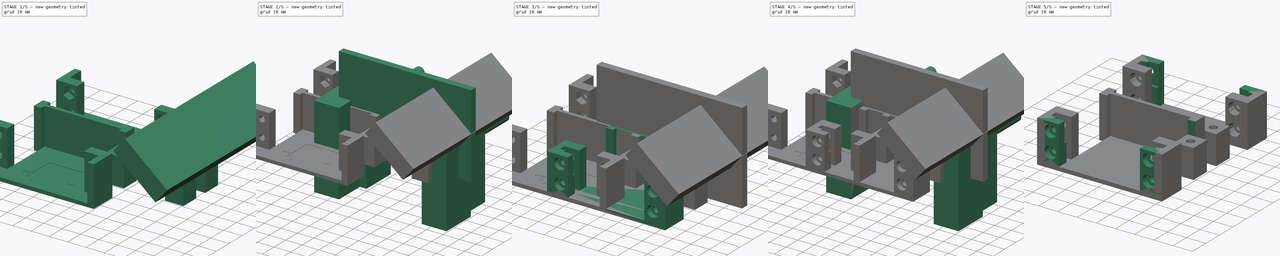
[diagram: build sequence overview — one tinted view per stage of 5, left to right]
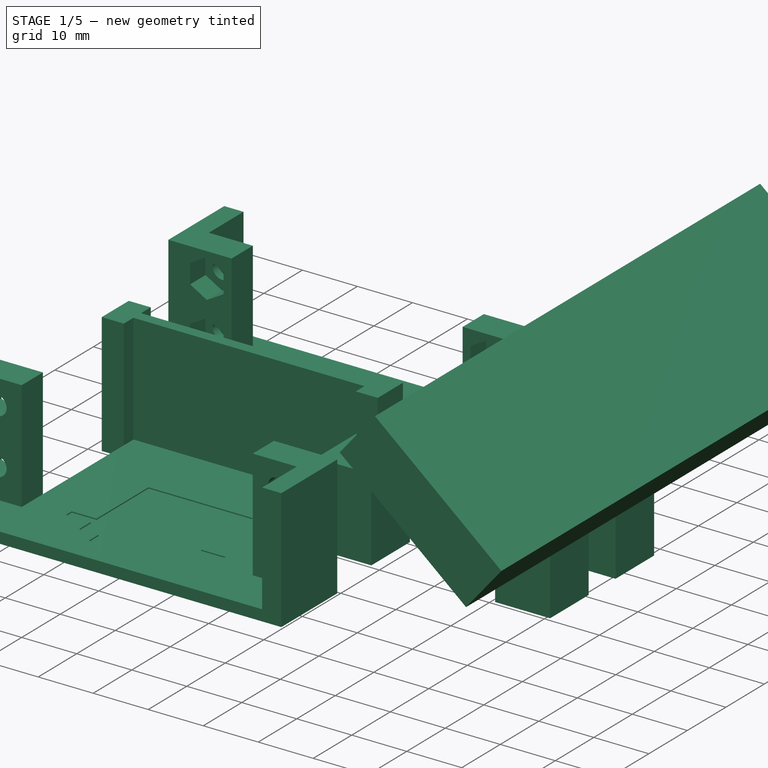
[diagram: stage 1 of 5 — iso view after this stage's code; geometry added in this stage tinted green]
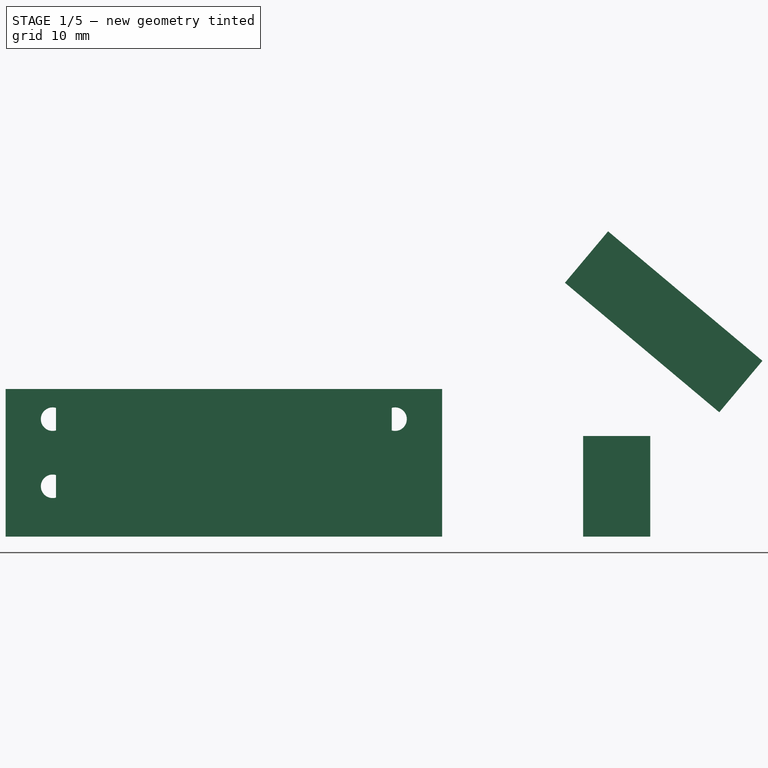
[diagram: stage 1 of 5 — front view after this stage's code; geometry added in this stage tinted green]
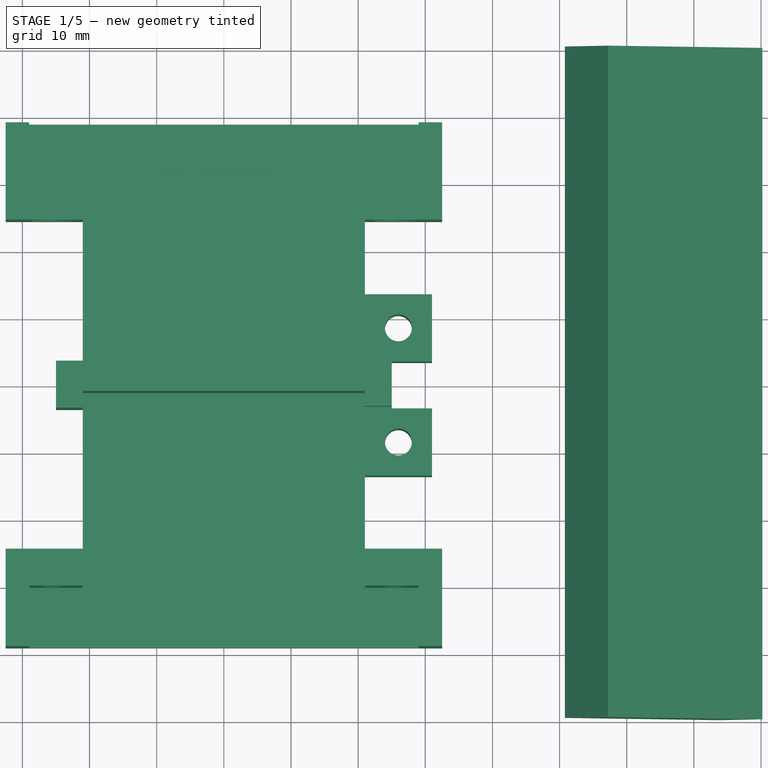
[diagram: stage 1 of 5 — top view after this stage's code; geometry added in this stage tinted green]
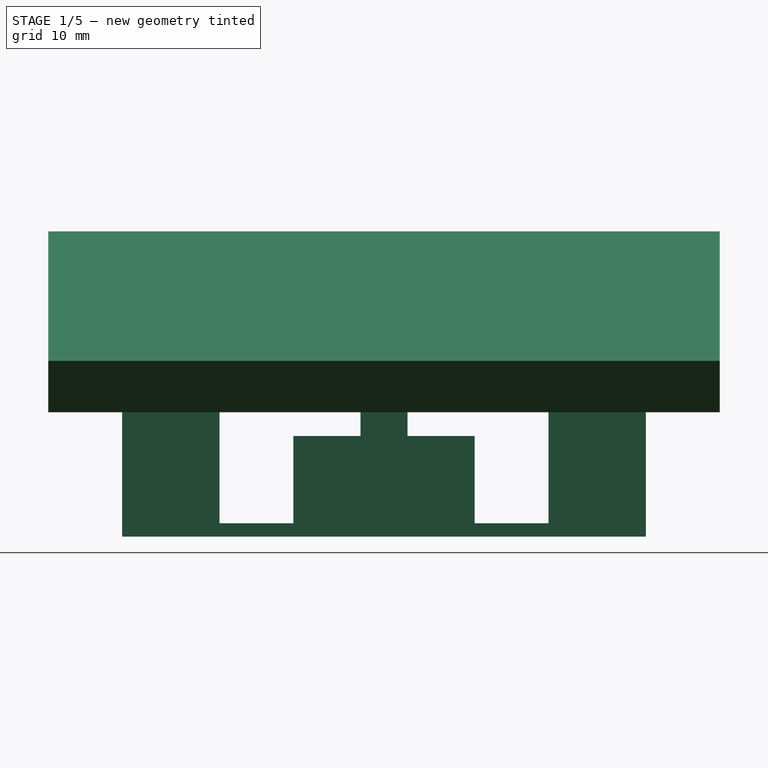
[diagram: stage 1 of 5 — right view after this stage's code; geometry added in this stage tinted green]
FCSTD DOCUMENT  (FreeCAD 0.14R3702 (Git))
Label: frame-rear-servos
License: CC-BY 3.0
LicenseURL: http://creativecommons.org/licenses/by/3.0/
objects: Part::Prism×28, Part::Box×27, Part::MultiFuse×15, Sketcher::SketchObject×9, PartDesign::Pocket×8, Part::Cut×7, PartDesign::Mirrored×3, Part::FeaturePython×2, Part::Mirroring×1, Part::Fuse×1, PartDesign::Pad×1
note: 111 computed .brp shape members not serialized (recipe doc carries the construction recipe); baked Part::Feature solids carry a one-line shape summary decoded from their .brp

FEATURE [Part::Box] cube024
  Height = 10
  Length = 30
  Placement = pos=(50.7954,-50,37.8116) rot=(0,1,0;0.698132rad)
  Width = 100
FEATURE [Part::Box] cube025
  Height = 15
  Length = 10
  Placement = pos=(53.5,3.5,0) rot=(0,0,1;0rad)
  Width = 10
FEATURE [Part::Prism] prism026
  Circumradius = 2
  Height = 30
  Placement = pos=(58.5,8.5,-5) rot=(0,0,1;0rad)
  Polygon = 25
FEATURE [Part::Cut] difference005
  Base = -> cube025
  Tool = -> prism026
FEATURE [Part::Box] cube026
  Height = 15
  Length = 10
  Placement = pos=(53.5,-13.5,0) rot=(0,0,1;0rad)
  Width = 10
FEATURE [Part::Prism] prism027
  Circumradius = 2
  Height = 30
  Placement = pos=(58.5,-8.5,-5) rot=(0,0,1;0rad)
  Polygon = 25
FEATURE [Part::Cut] difference006
  Base = -> cube026
  Tool = -> prism027
FEATURE [Sketcher::SketchObject] Sketch  label="main-body-sketch"
  sketch-geometry (24):
    g0: LineSegment StartX=-32.5 StartY=-39 StartZ=0 EndX=-32.5 EndY=-24.5 EndZ=0
    g1: LineSegment StartX=-32.5 StartY=-24.5 StartZ=0 EndX=-21 EndY=-24.5 EndZ=0
    g2: LineSegment StartX=-21 StartY=-24.5 StartZ=0 EndX=-21 EndY=-3.5 EndZ=0
    g3: LineSegment StartX=-21 StartY=-3.5 StartZ=0 EndX=-25 EndY=-3.5 EndZ=0
    g4: LineSegment StartX=-25 StartY=-3.5 StartZ=0 EndX=-25 EndY=3.5 EndZ=0
    g5: LineSegment StartX=-25 StartY=3.5 StartZ=0 EndX=-21 EndY=3.5 EndZ=0
    g6: LineSegment StartX=-21 StartY=3.5 StartZ=0 EndX=-21 EndY=24.5 EndZ=0
    g7: LineSegment StartX=-21 StartY=24.5 StartZ=0 EndX=-32.5 EndY=24.5 EndZ=0
    g8: LineSegment StartX=-32.5 StartY=24.5 StartZ=0 EndX=-32.5 EndY=39 EndZ=0
    g9: LineSegment StartX=-32.5 StartY=39 StartZ=0 EndX=32.5 EndY=39 EndZ=0
    g10: LineSegment StartX=32.5 StartY=39 StartZ=0 EndX=32.5 EndY=24.5 EndZ=0
    g11: LineSegment StartX=32.5 StartY=24.5 StartZ=0 EndX=21 EndY=24.5 EndZ=0
    g12: LineSegment StartX=21 StartY=24.5 StartZ=0 EndX=21 EndY=13.5 EndZ=0
    g13: LineSegment StartX=21 StartY=13.5 StartZ=0 EndX=31 EndY=13.5 EndZ=0
    g14: LineSegment StartX=31 StartY=13.5 StartZ=0 EndX=31 EndY=3.5 EndZ=0
    g15: LineSegment StartX=31 StartY=3.5 StartZ=0 EndX=25 EndY=3.5 EndZ=0
    g16: LineSegment StartX=25 StartY=3.5 StartZ=0 EndX=25 EndY=-3.5 EndZ=0
    g17: LineSegment StartX=25 StartY=-3.5 StartZ=0 EndX=31 EndY=-3.5 EndZ=0
    g18: LineSegment StartX=31 StartY=-3.5 StartZ=0 EndX=31 EndY=-13.5 EndZ=0
    g19: LineSegment StartX=31 StartY=-13.5 StartZ=0 EndX=21 EndY=-13.5 EndZ=0
    g20: LineSegment StartX=21 StartY=-13.5 StartZ=0 EndX=21 EndY=-24.5 EndZ=0
    g21: LineSegment StartX=21 StartY=-24.5 StartZ=0 EndX=32.5 EndY=-24.5 EndZ=0
    g22: LineSegment StartX=32.5 StartY=-24.5 StartZ=0 EndX=32.5 EndY=-39 EndZ=0
    g23: LineSegment StartX=32.5 StartY=-39 StartZ=0 EndX=-32.5 EndY=-39 EndZ=0
  constraints (66):
    c: Coincident(g0,g1)
    c: Coincident(g1,g2)
    c: Coincident(g2,g3)
    c: Coincident(g3,g4)
    c: Coincident(g4,g5)
    c: Coincident(g5,g6)
    c: Coincident(g6,g7)
    c: Coincident(g7,g8)
    c: Coincident(g8,g9)
    c: Coincident(g9,g10)
    c: Coincident(g10,g11)
    c: Coincident(g11,g12)
    c: Coincident(g12,g13)
    c: Coincident(g13,g14)
    c: Coincident(g14,g15)
    c: Coincident(g15,g16)
    c: Coincident(g16,g17)
    c: Coincident(g17,g18)
    c: Coincident(g18,g19)
    c: Coincident(g19,g20)
    c: Coincident(g20,g21)
    c: Coincident(g21,g22)
    c: Coincident(g22,g23)
    c: Coincident(g23,g0)
    c: Vertical(g0)
    c: Vertical(g22)
    c: Vertical(g20)
    c: Vertical(g18)
    c: Vertical(g16)
    c: Vertical(g14)
    c: Vertical(g12)
    c: Vertical(g10)
    c: Vertical(g8)
    c: Vertical(g6)
    c: Vertical(g4)
    c: Vertical(g2)
    c: Horizontal(g9)
    c: Horizontal(g7)
    c: Horizontal(g5)
    c: Horizontal(g3)
    c: Horizontal(g21)
    c: Horizontal(g19)
    c: Horizontal(g17)
    c: Horizontal(g13)
    c: Horizontal(g11)
    c: Symmetric(g8,g9,g-2)
    c: DistanceX(g9) = 65
    c: DistanceY(g10) = -14.5
    c: DistanceY(g6) = 21
    c: Symmetric(g6,g11,g-2)
    c: DistanceX(g7) = -11.5
    c: DistanceX(g5) = 4
    c: DistanceY(g4) = 7
    c: Symmetric(g2,g5,g-1)
    c: Symmetric(g1,g6,g-1)
    c: Symmetric(g0,g7,g-1)
    c: Symmetric(g0,g8,g-1)
    c: Horizontal(g23)
    c: Symmetric(g1,g20,g-2)
    c: Symmetric(g0,g21,g-2)
    c: Symmetric(g16,g15,g-1)
    c: Symmetric(g14,g17,g-1)
    c: DistanceY(g14) = -10
    c: DistanceX(g13) = 10
    c: Symmetric(g15,g4,g-2)
    c: DistanceY(g20) = -11
FEATURE [PartDesign::Pad] Pad  label="main-body"
  Length = 22
  Length2 = 100
  Sketch = -> Sketch
  Type = 0
FEATURE [Sketcher::SketchObject] Sketch001  label="top-cutout-1-sketch"
  ExternalGeometry = -> [Pad]
  Placement = pos=(0,0,22) rot=(0,0,1;0rad)
  Support = -> Pad [Face26]
  sketch-geometry (16):
    g0: LineSegment StartX=-29 StartY=39 StartZ=0 EndX=-29 EndY=30 EndZ=0
    g1: LineSegment StartX=-29 StartY=30 StartZ=0 EndX=-21 EndY=30 EndZ=0
    g2: LineSegment StartX=-21 StartY=30 StartZ=0 EndX=-21 EndY=1 EndZ=0
    g3: LineSegment StartX=-21 StartY=1 StartZ=0 EndX=21 EndY=1 EndZ=0
    g4: LineSegment StartX=21 StartY=1 StartZ=0 EndX=21 EndY=30 EndZ=0
    g5: LineSegment StartX=21 StartY=30 StartZ=0 EndX=29 EndY=30 EndZ=0
    g6: LineSegment StartX=29 StartY=30 StartZ=0 EndX=29 EndY=39 EndZ=0
    g7: LineSegment StartX=29 StartY=39 StartZ=0 EndX=-29 EndY=39 EndZ=0
    g8: LineSegment StartX=21 StartY=-1 StartZ=0 EndX=-21 EndY=-1 EndZ=0
    g9: LineSegment StartX=-21 StartY=-1 StartZ=0 EndX=-21 EndY=-30 EndZ=0
    g10: LineSegment StartX=-21 StartY=-30 StartZ=0 EndX=-29 EndY=-30 EndZ=0
    g11: LineSegment StartX=-29 StartY=-30 StartZ=0 EndX=-29 EndY=-39 EndZ=0
    g12: LineSegment StartX=-29 StartY=-39 StartZ=0 EndX=29 EndY=-39 EndZ=0
    g13: LineSegment StartX=29 StartY=-39 StartZ=0 EndX=29 EndY=-30 EndZ=0
    g14: LineSegment StartX=29 StartY=-30 StartZ=0 EndX=21 EndY=-30 EndZ=0
    g15: LineSegment StartX=21 StartY=-30 StartZ=0 EndX=21 EndY=-1 EndZ=0
  constraints (44):
    c: Coincident(g0,g1)
    c: Coincident(g1,g2)
    c: Coincident(g2,g3)
    c: Coincident(g3,g4)
    c: Coincident(g4,g5)
    c: Coincident(g5,g6)
    c: Coincident(g6,g7)
    c: Coincident(g7,g0)
    c: Vertical(g0)
    c: Vertical(g6)
    c: Vertical(g4)
    c: Vertical(g2)
    c: Horizontal(g7)
    c: Horizontal(g1)
    c: Horizontal(g5)
    c: Horizontal(g3)
    c: Symmetric(g0,g6,g-2)
    c: Symmetric(g1,g4,g-2)
    c: DistanceX(g7) = -58
    c: PointOnObject(g0,g-3)
    c: DistanceY(g0) = -9
    c: DistanceX(g1,g4) = 42
    c: DistanceY(g2) = -29
    c: Horizontal(g8)
    c: Coincident(g8,g9)
    c: Coincident(g9,g10)
    c: Coincident(g10,g11)
    c: Vertical(g11)
    c: Coincident(g11,g12)
    c: Horizontal(g12)
    c: Coincident(g12,g13)
    c: Vertical(g13)
    c: Coincident(g13,g14)
    c: Horizontal(g14)
    c: Coincident(g14,g15)
    c: Coincident(g15,g8)
    c: Vertical(g15)
    c: Symmetric(g2,g8,g-1)
    c: Symmetric(g8,g8,g-2)
    c: Symmetric(g9,g14,g-2)
    c: Symmetric(g10,g13,g-2)
    c: Symmetric(g9,g1,g-1)
    c: Symmetric(g10,g0,g-1)
    c: Symmetric(g11,g0,g-1)
FEATURE [PartDesign::Pocket] Pocket  label="top-cutout-1"
  Length = 20
  Sketch = -> Sketch001
  Type = 0
FEATURE [Sketcher::SketchObject] Sketch002  label="top-cutout-2-sketch"
  Placement = pos=(0,0,22) rot=(0,0,1;0rad)
  Support = -> Pocket [Face38]
  sketch-geometry (8):
    g0: LineSegment StartX=33 StartY=15.25 StartZ=0 EndX=33 EndY=3.25 EndZ=0
    g1: LineSegment StartX=21 StartY=3.25 StartZ=0 EndX=21 EndY=15.25 EndZ=0
    g2: LineSegment StartX=21 StartY=-3.25 StartZ=0 EndX=33 EndY=-3.25 EndZ=0
    g3: LineSegment StartX=33 StartY=-3.25 StartZ=0 EndX=33 EndY=-15.25 EndZ=0
    g4: LineSegment StartX=33 StartY=-15.25 StartZ=0 EndX=21 EndY=-15.25 EndZ=0
    g5: LineSegment StartX=21 StartY=-15.25 StartZ=0 EndX=21 EndY=-3.25 EndZ=0
    g6: LineSegment StartX=21 StartY=3.25 StartZ=0 EndX=33 EndY=3.25 EndZ=0
    g7: LineSegment StartX=21 StartY=15.25 StartZ=0 EndX=33 EndY=15.25 EndZ=0
  constraints (23):
    c: Vertical(g0)
    c: Vertical(g1)
    c: Coincident(g2,g3)
    c: Coincident(g3,g4)
    c: Coincident(g4,g5)
    c: Coincident(g5,g2)
    c: Horizontal(g2)
    c: Horizontal(g4)
    c: Vertical(g3)
    c: Vertical(g5)
    c: Symmetric(g2,g1,g-1)
    c: Symmetric(g2,g0,g-1)
    c: Symmetric(g3,g0,g-1)
    c: DistanceX(g-1,g1) = 21
    c: DistanceY(g-1,g1) = 3.25
    c: Coincident(g6,g1)
    c: Horizontal(g6)
    c: Coincident(g6,g0)
    c: Coincident(g7,g1)
    c: Coincident(g7,g0)
    c: Horizontal(g7)
    c: DistanceY(g0) = -12
    c: DistanceX(g7) = 12
FEATURE [PartDesign::Pocket] Pocket001  label="top-cutout-2"
  Length = 7
  Sketch = -> Sketch002
  Type = 0
FEATURE [Sketcher::SketchObject] Sketch003  label="top-drills-sketch"
  Placement = pos=(0,0,15) rot=(0,0,1;0rad)
  Support = -> Pocket001 [Face47]
  sketch-geometry (2):
    g0: Circle CenterX=26 CenterY=8.5 CenterZ=0 NormalX=0 NormalY=0 NormalZ=1 Radius=2
    g1: Circle CenterX=26 CenterY=-8.5 CenterZ=0 NormalX=0 NormalY=0 NormalZ=1 Radius=2
  constraints (5):
    c: Radius(g0) = 2
    c: Equal(g1,g0)
    c: Symmetric(g0,g1,g-1)
    c: DistanceY(g-1,g0) = 8.5
    c: DistanceX(g-1,g0) = 26
FEATURE [PartDesign::Pocket] Pocket002  label="top-drills"
  Length = 5
  Sketch = -> Sketch003
  Type = 1
FEATURE [Sketcher::SketchObject] Sketch004  label="servo-1-drills-sketch"
  Placement = pos=(0,-30,0) rot=(1,0,0;1.5708rad)
  Support = -> Pocket002 [Face34]
  sketch-geometry (5):
    g0: Circle CenterX=-25.5 CenterY=17.5 CenterZ=0 NormalX=0 NormalY=0 NormalZ=1 Radius=1.75
    g1: LineSegment [constr] StartX=-25.5 StartY=17.5 StartZ=0 EndX=-25.5 EndY=7.5 EndZ=0
    g2: Circle CenterX=-25.5 CenterY=7.5 CenterZ=0 NormalX=0 NormalY=0 NormalZ=1 Radius=1.75
    g3: Circle CenterX=25.5 CenterY=17.5 CenterZ=0 NormalX=0 NormalY=0 NormalZ=1 Radius=1.75
    g4: Circle CenterX=25.5 CenterY=7.5 CenterZ=0 NormalX=0 NormalY=0 NormalZ=1 Radius=1.75
  constraints (12):
    c: Radius(g0) = 1.75
    c: DistanceY(g-1,g0) = 17.5
    c: DistanceX(g-1,g0) = -25.5
    c: Vertical(g1)
    c: Coincident(g1,g0)
    c: Equal(g2,g0)
    c: Coincident(g2,g1)
    c: DistanceY(g-1,g1) = 7.5
    c: Symmetric(g3,g0,g-2)
    c: Symmetric(g4,g1,g-2)
    c: Equal(g3,g4)
    c: Equal(g4,g0)
FEATURE [PartDesign::Pocket] Pocket003  label="servo-1-drills"
  Length = 6
  Sketch = -> Sketch004
  Type = 0
FEATURE [Sketcher::SketchObject] Sketch005  label="servo-2-drills-sketch"
  Placement = pos=(0,30,0) rot=(0,0.707107,0.707107;3.14159rad)
  Support = -> Pocket003 [Face59]
  sketch-geometry (5):
    g0: Circle CenterX=-25.5 CenterY=17.5 CenterZ=0 NormalX=0 NormalY=0 NormalZ=1 Radius=1.75
    g1: Circle CenterX=-25.5 CenterY=7.5 CenterZ=0 NormalX=0 NormalY=0 NormalZ=1 Radius=1.75
    g2: LineSegment [constr] StartX=-25.5 StartY=17.5 StartZ=0 EndX=-25.5 EndY=7.5 EndZ=0
    g3: Circle CenterX=25.5 CenterY=17.5 CenterZ=0 NormalX=0 NormalY=0 NormalZ=1 Radius=1.75
    g4: Circle CenterX=25.5 CenterY=7.5 CenterZ=0 NormalX=0 NormalY=0 NormalZ=1 Radius=1.75
  constraints (12):
    c: Equal(g1,g0)
    c: Radius(g0) = 1.75
    c: DistanceY(g-1,g0) = 17.5
    c: DistanceY(g-1,g1) = 7.5
    c: Vertical(g2)
    c: Coincident(g2,g0)
    c: Coincident(g2,g1)
    c: DistanceX(g-1,g1) = -25.5
    c: Equal(g3,g4)
    c: Equal(g4,g0)
    c: Symmetric(g3,g0,g-2)
    c: Symmetric(g4,g1,g-2)
FEATURE [PartDesign::Pocket] Pocket004  label="servo-2-drills"
  Length = 6
  Sketch = -> Sketch005
  Type = 0
FEATURE [Sketcher::SketchObject] Sketch007  label="servo-2-nut-holders-master-sketch"
  Placement = pos=(0,24.5,0) rot=(1,0,0;1.5708rad)
  Support = -> Pocket004 [Face24]
  sketch-geometry (17):
    g0: LineSegment [constr] StartX=-25.5 StartY=21.0218 StartZ=0 EndX=-25.5 EndY=17.5 EndZ=0
    g1: LineSegment [constr] StartX=-28.55 StartY=17.5 StartZ=0 EndX=-25.5 EndY=17.5 EndZ=0
    g2: LineSegment StartX=-25.5 StartY=21.0218 StartZ=0 EndX=-28.55 EndY=19.2609 EndZ=0
    g3: LineSegment StartX=-28.55 StartY=19.2609 StartZ=0 EndX=-28.55 EndY=15.7391 EndZ=0
    g4: LineSegment [constr] StartX=-28.55 StartY=19.2609 StartZ=0 EndX=-25.5 EndY=17.5 EndZ=0
    g5: LineSegment StartX=-28.55 StartY=15.7391 StartZ=0 EndX=-25.5 EndY=13.9782 EndZ=0
    g6: LineSegment StartX=-25.5 StartY=13.9782 StartZ=0 EndX=-22.45 EndY=15.7391 EndZ=0
    g7: LineSegment StartX=-22.45 StartY=15.7391 StartZ=0 EndX=-22.45 EndY=19.2609 EndZ=0
    g8: LineSegment StartX=-22.45 StartY=19.2609 StartZ=0 EndX=-25.5 EndY=21.0218 EndZ=0
    g9: LineSegment [constr] StartX=-25.5 StartY=7.5 StartZ=0 EndX=-25.5 EndY=17.5 EndZ=0
    g10: LineSegment StartX=-25.5 StartY=11.0218 StartZ=0 EndX=-28.55 EndY=9.26092 EndZ=0
    g11: LineSegment StartX=-28.55 StartY=9.26092 StartZ=0 EndX=-28.55 EndY=5.73908 EndZ=0
    g12: LineSegment StartX=-28.55 StartY=5.73908 StartZ=0 EndX=-25.5 EndY=3.97816 EndZ=0
    g13: LineSegment StartX=-25.5 StartY=3.97816 StartZ=0 EndX=-22.45 EndY=5.73908 EndZ=0
    g14: LineSegment StartX=-22.45 StartY=5.73908 StartZ=0 EndX=-22.45 EndY=9.26092 EndZ=0
    g15: LineSegment StartX=-22.45 StartY=9.26092 StartZ=0 EndX=-25.5 EndY=11.0218 EndZ=0
    g16: LineSegment [constr] StartX=-25.5 StartY=12.5 StartZ=0 EndX=0 EndY=12.5 EndZ=0
  constraints (44):
    c: Horizontal(g1)
    c: Coincident(g2,g3)
    c: PointOnObject(g1,g3)
    c: Coincident(g2,g0)
    c: Coincident(g2,g4)
    c: Symmetric(g3,g2,g1)
    c: Angle(g0,g4) = 1.0472
    c: Vertical(g0)
    c: Coincident(g0,g1)
    c: Coincident(g4,g0)
    c: Equal(g4,g0)
    c: Coincident(g3,g5)
    c: Coincident(g5,g6)
    c: Coincident(g6,g7)
    c: Vertical(g7)
    c: Coincident(g7,g8)
    c: Coincident(g8,g0)
    c: Symmetric(g3,g6,g0)
    c: Symmetric(g5,g0,g1)
    c: Symmetric(g7,g2,g0)
    c: DistanceX(g2,g7) = 6.1
    c: DistanceX(g-1,g0) = -25.5
    c: DistanceY(g-1,g0) = 17.5
    c: Vertical(g9)
    c: Coincident(g9,g0)
    c: DistanceY(g-1,g9) = 7.5
    c: Coincident(g10,g11)
    c: Vertical(g11)
    c: Coincident(g11,g12)
    c: Coincident(g12,g13)
    c: Coincident(g13,g14)
    c: Vertical(g14)
    c: Coincident(g14,g15)
    c: Coincident(g15,g10)
    c: Symmetric(g10,g14,g9)
    c: Parallel(g10,g2)
    c: Parallel(g13,g10)
    c: PointOnObject(g16,g9)
    c: PointOnObject(g16,g-2)
    c: Symmetric(g0,g9,g16)
    c: Symmetric(g10,g5,g16)
    c: Symmetric(g10,g3,g16)
    c: Symmetric(g12,g0,g16)
    c: Symmetric(g11,g2,g16)
FEATURE [PartDesign::Pocket] Pocket005  label="servo-2-nut-holders-master"
  Length = 4
  Sketch = -> Sketch007
  Type = 0
FEATURE [PartDesign::Mirrored] Mirrored  label="servo-2-nut-holders-mirror"
  MirrorPlane = -> Sketch007 [V_Axis]
  Originals = -> [Pocket005]
FEATURE [Sketcher::SketchObject] Sketch006  label="servo-1-nut-holders-master-sketch"
  Placement = pos=(0,-24.5,0) rot=(0,0.707107,0.707107;3.14159rad)
  Support = -> Mirrored [Face15]
  sketch-geometry (17):
    g0: LineSegment [constr] StartX=-25.5 StartY=21.0218 StartZ=0 EndX=-25.5 EndY=17.5 EndZ=0
    g1: LineSegment [constr] StartX=-28.55 StartY=17.5 StartZ=0 EndX=-25.5 EndY=17.5 EndZ=0
    g2: LineSegment StartX=-25.5 StartY=21.0218 StartZ=0 EndX=-28.55 EndY=19.2609 EndZ=0
    g3: LineSegment StartX=-28.55 StartY=19.2609 StartZ=0 EndX=-28.55 EndY=15.7391 EndZ=0
    g4: LineSegment [constr] StartX=-28.55 StartY=19.2609 StartZ=0 EndX=-25.5 EndY=17.5 EndZ=0
    g5: LineSegment StartX=-28.55 StartY=15.7391 StartZ=0 EndX=-25.5 EndY=13.9782 EndZ=0
    g6: LineSegment StartX=-25.5 StartY=13.9782 StartZ=0 EndX=-22.45 EndY=15.7391 EndZ=0
    g7: LineSegment StartX=-22.45 StartY=15.7391 StartZ=0 EndX=-22.45 EndY=19.2609 EndZ=0
    g8: LineSegment StartX=-22.45 StartY=19.2609 StartZ=0 EndX=-25.5 EndY=21.0218 EndZ=0
    g9: LineSegment [constr] StartX=-25.5 StartY=7.5 StartZ=0 EndX=-25.5 EndY=17.5 EndZ=0
    g10: LineSegment StartX=-25.5 StartY=11.0218 StartZ=0 EndX=-28.55 EndY=9.26092 EndZ=0
    g11: LineSegment StartX=-28.55 StartY=9.26092 StartZ=0 EndX=-28.55 EndY=5.73908 EndZ=0
    g12: LineSegment StartX=-28.55 StartY=5.73908 StartZ=0 EndX=-25.5 EndY=3.97816 EndZ=0
    g13: LineSegment StartX=-25.5 StartY=3.97816 StartZ=0 EndX=-22.45 EndY=5.73908 EndZ=0
    g14: LineSegment StartX=-22.45 StartY=5.73908 StartZ=0 EndX=-22.45 EndY=9.26092 EndZ=0
    g15: LineSegment StartX=-22.45 StartY=9.26092 StartZ=0 EndX=-25.5 EndY=11.0218 EndZ=0
    g16: LineSegment [constr] StartX=-25.5 StartY=12.5 StartZ=0 EndX=0 EndY=12.5 EndZ=0
  constraints (44):
    c: Horizontal(g1)
    c: Coincident(g2,g3)
    c: PointOnObject(g1,g3)
    c: Coincident(g2,g0)
    c: Coincident(g2,g4)
    c: Symmetric(g3,g2,g1)
    c: Angle(g0,g4) = 1.0472
    c: Vertical(g0)
    c: Coincident(g0,g1)
    c: Coincident(g4,g0)
    c: Equal(g4,g0)
    c: Coincident(g3,g5)
    c: Coincident(g5,g6)
    c: Coincident(g6,g7)
    c: Vertical(g7)
    c: Coincident(g7,g8)
    c: Coincident(g8,g0)
    c: Symmetric(g3,g6,g0)
    c: Symmetric(g5,g0,g1)
    c: Symmetric(g7,g2,g0)
    c: DistanceX(g2,g7) = 6.1
    c: DistanceX(g-1,g0) = -25.5
    c: DistanceY(g-1,g0) = 17.5
    c: Vertical(g9)
    c: Coincident(g9,g0)
    c: DistanceY(g-1,g9) = 7.5
    c: Coincident(g10,g11)
    c: Vertical(g11)
    c: Coincident(g11,g12)
    c: Coincident(g12,g13)
    c: Coincident(g13,g14)
    c: Vertical(g14)
    c: Coincident(g14,g15)
    c: Coincident(g15,g10)
    c: Symmetric(g10,g14,g9)
    c: Parallel(g10,g2)
    c: Parallel(g13,g10)
    c: PointOnObject(g16,g9)
    c: PointOnObject(g16,g-2)
    c: Symmetric(g0,g9,g16)
    c: Symmetric(g10,g5,g16)
    c: Symmetric(g10,g3,g16)
    c: Symmetric(g12,g0,g16)
    c: Symmetric(g11,g2,g16)
FEATURE [PartDesign::Pocket] Pocket006  label="servo-1-nut-holders-master"
  Length = 4
  Sketch = -> Sketch006
  Type = 0
FEATURE [PartDesign::Mirrored] Mirrored001  label="servo-1-nut-holders-mirror"
  MirrorPlane = -> Sketch006 [V_Axis]
  Originals = -> [Pocket006]
FEATURE [Sketcher::SketchObject] Sketch008  label="servo-doc-sketch"
  Placement = pos=(0,0,2) rot=(0,0,1;0rad)
  Support = -> Mirrored001 [Face69]
  sketch-geometry (16):
    g0: LineSegment StartX=9.5 StartY=13.5 StartZ=0 EndX=-9.5 EndY=13.5 EndZ=0
    g1: LineSegment StartX=-9.5 StartY=13.5 StartZ=0 EndX=-9.5 EndY=27 EndZ=0
    g2: LineSegment StartX=-9.5 StartY=27 StartZ=0 EndX=-14 EndY=27 EndZ=0
    g3: LineSegment StartX=-14 StartY=27 StartZ=0 EndX=-14 EndY=28.5 EndZ=0
    g4: LineSegment StartX=-6 StartY=31.5 StartZ=0 EndX=-6 EndY=34 EndZ=0
    g5: LineSegment StartX=-6 StartY=34 StartZ=0 EndX=-3.7 EndY=34 EndZ=0
    g6: LineSegment StartX=-3.7 StartY=34 StartZ=0 EndX=-3.7 EndY=31.5 EndZ=0
    g7: LineSegment StartX=-3.7 StartY=31.5 StartZ=0 EndX=6.5 EndY=31.5 EndZ=0
    g8: LineSegment StartX=6.5 StartY=31.5 StartZ=0 EndX=9.5 EndY=28.5 EndZ=0
    g9: LineSegment StartX=9.5 StartY=28.5 StartZ=0 EndX=14 EndY=28.5 EndZ=0
    g10: LineSegment StartX=14 StartY=28.5 StartZ=0 EndX=14 EndY=27 EndZ=0
    g11: LineSegment StartX=14 StartY=27 StartZ=0 EndX=9.5 EndY=27 EndZ=0
    g12: LineSegment StartX=9.5 StartY=27 StartZ=0 EndX=9.5 EndY=13.5 EndZ=0
    g13: LineSegment StartX=-14 StartY=28.5 StartZ=0 EndX=-9.5 EndY=28.5 EndZ=0
    g14: LineSegment StartX=-9.5 StartY=28.5 StartZ=0 EndX=-9.5 EndY=31.5 EndZ=0
    g15: LineSegment StartX=-9.5 StartY=31.5 StartZ=0 EndX=-6 EndY=31.5 EndZ=0
  constraints (47):
    c: Horizontal(g0)
    c: Coincident(g0,g1)
    c: Vertical(g1)
    c: Coincident(g1,g2)
    c: Horizontal(g2)
    c: Coincident(g2,g3)
    c: Coincident(g4,g5)
    c: Horizontal(g5)
    c: Coincident(g5,g6)
    c: Vertical(g6)
    c: Coincident(g6,g7)
    c: Horizontal(g7)
    c: Coincident(g7,g8)
    c: Coincident(g8,g9)
    c: Horizontal(g9)
    c: Coincident(g9,g10)
    c: Coincident(g10,g11)
    c: Horizontal(g11)
    c: Coincident(g11,g12)
    c: Coincident(g12,g0)
    c: Vertical(g12)
    c: Symmetric(g0,g0,g-2)
    c: Vertical(g3)
    c: Coincident(g3,g13)
    c: Horizontal(g13)
    c: Coincident(g13,g14)
    c: Coincident(g14,g15)
    c: Coincident(g15,g4)
    c: Horizontal(g15)
    c: Symmetric(g1,g11,g-2)
    c: Symmetric(g3,g9,g-2)
    c: PointOnObject(g4,g7)
    c: Vertical(g4)
    c: Vertical(g14)
    c: PointOnObject(g13,g1)
    c: PointOnObject(g8,g12)
    c: Vertical(g10)
    c: Angle(g8,g-1) = 0.785398
    c: DistanceX(g0) = -19
    c: DistanceY(g14,g0) = -18
    c: DistanceY(g14) = 3
    c: DistanceX(g2) = -4.5
    c: DistanceY(g3) = 1.5
    c: DistanceY(g6) = -2.5
    c: DistanceX(g5) = 2.3
    c: DistanceX(g15) = 3.5
    c: DistanceY(g-1,g0) = 13.5
FEATURE [PartDesign::Pocket] Pocket007  label="Servo-doc"
  Length = 0.2
  Sketch = -> Sketch008
  Type = 0
FEATURE [PartDesign::Mirrored] Mirrored002  label="servo-doc-mirror"
  MirrorPlane = -> Sketch008 [H_Axis]
  Originals = -> [Pocket007]
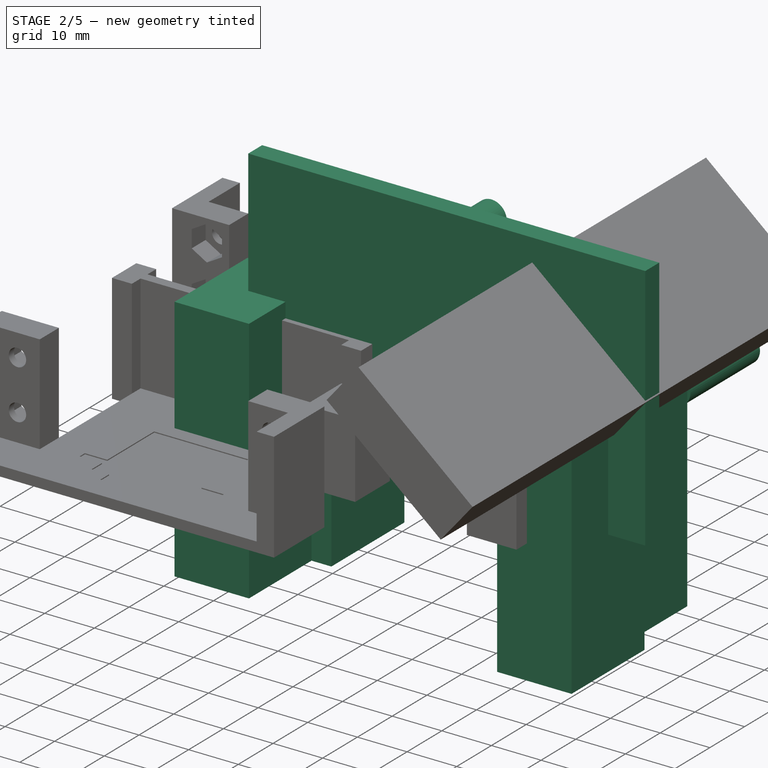
[diagram: stage 2 of 5 — iso view after this stage's code; geometry added in this stage tinted green]
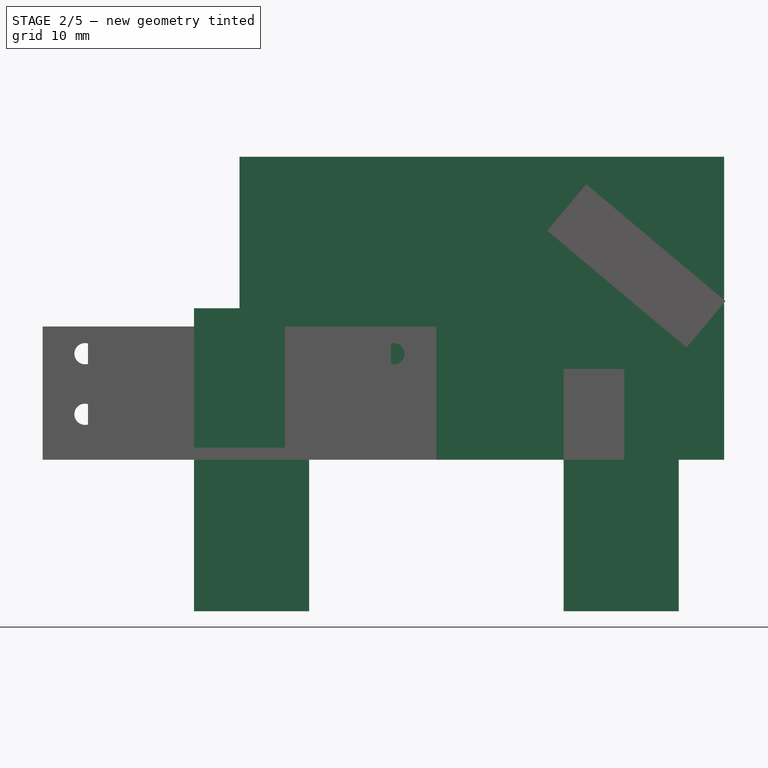
[diagram: stage 2 of 5 — front view after this stage's code; geometry added in this stage tinted green]
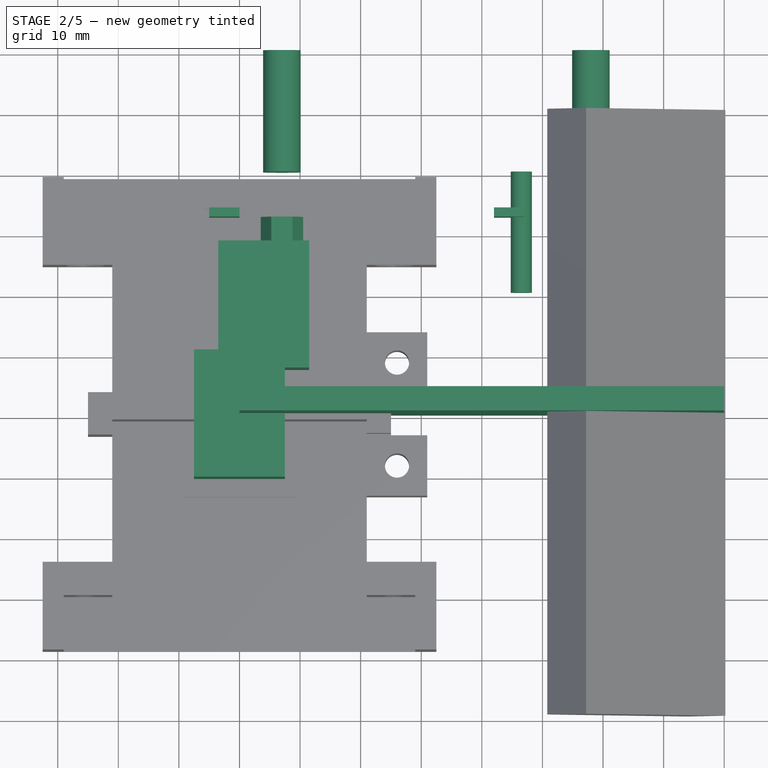
[diagram: stage 2 of 5 — top view after this stage's code; geometry added in this stage tinted green]
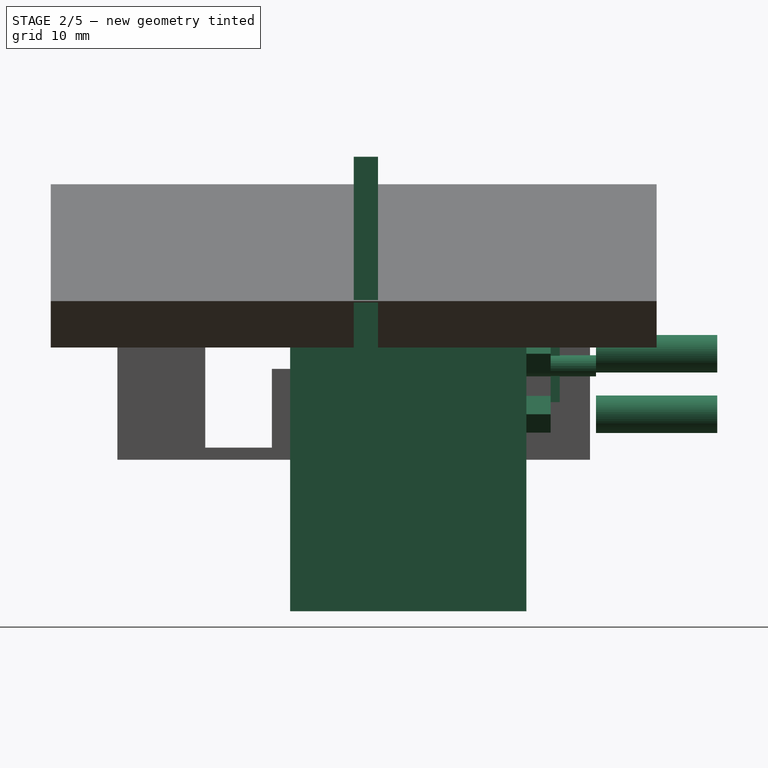
[diagram: stage 2 of 5 — right view after this stage's code; geometry added in this stage tinted green]
FEATURE [Part::Prism] prism017
  Circumradius = 1.75
  Height = 20
  Placement = pos=(46.5,40,15.5) rot=(1,0,0;1.5708rad)
  Polygon = 25
FEATURE [Part::Box] cube017
  Height = 11.5
  Length = 5
  Placement = pos=(-5,32.5,9.5) rot=(0,0,1;0rad)
  Width = 1.5
FEATURE [Part::Box] cube018
  Height = 11.5
  Length = 5
  Placement = pos=(42,32.5,9.5) rot=(0,0,1;0rad)
  Width = 1.5
FEATURE [Part::Box] cube019
  Height = 50
  Length = 15
  Placement = pos=(-3.5,7.5,-25) rot=(0,0,1;0rad)
  Width = 21
FEATURE [Part::Box] cube020
  Height = 50
  Length = 15
  Placement = pos=(53.5,7.5,-25) rot=(0,0,1;0rad)
  Width = 21
FEATURE [Part::Box] cube021
  Height = 50
  Length = 15
  Placement = pos=(-7.5,-10.5,-25) rot=(0,0,1;0rad)
  Width = 21
FEATURE [Part::Box] cube022
  Height = 50
  Length = 15
  Placement = pos=(57.5,-10.5,-25) rot=(0,0,1;0rad)
  Width = 21
FEATURE [Part::Prism] prism018
  Circumradius = 3.5
  Height = 20
  Placement = pos=(-4.5,40,5.5) rot=(1,0,0;1.5708rad)
  Polygon = 6
FEATURE [Part::Prism] prism019
  Circumradius = 3.5
  Height = 20
  Placement = pos=(-4.5,40,15.5) rot=(1,0,0;1.5708rad)
  Polygon = 6
FEATURE [Part::Prism] prism020
  Circumradius = 3.5
  Height = 20
  Placement = pos=(46.5,40,5.5) rot=(1,0,0;1.5708rad)
  Polygon = 6
FEATURE [Part::Prism] prism021
  Circumradius = 3.5
  Height = 20
  Placement = pos=(46.5,40,15.5) rot=(1,0,0;1.5708rad)
  Polygon = 6
FEATURE [Part::MultiFuse] Matrix_Union004
  Placement = pos=(11.5,-7.5,2) rot=(0,0,1;0rad)
  Shapes = -> [prism018,prism019,prism020,prism021]
FEATURE [Part::Prism] prism022
  Circumradius = 3.1
  Height = 20
  Placement = pos=(-4.5,40,5.5) rot=(1,0,0;1.5708rad)
  Polygon = 50
FEATURE [Part::Prism] prism023
  Circumradius = 3.1
  Height = 20
  Placement = pos=(-4.5,40,15.5) rot=(1,0,0;1.5708rad)
  Polygon = 50
FEATURE [Part::Prism] prism024
  Circumradius = 3.1
  Height = 20
  Placement = pos=(46.5,40,5.5) rot=(1,0,0;1.5708rad)
  Polygon = 50
FEATURE [Part::Prism] prism025
  Circumradius = 3.1
  Height = 20
  Placement = pos=(46.5,40,15.5) rot=(1,0,0;1.5708rad)
  Polygon = 50
FEATURE [Part::MultiFuse] Matrix_Union005
  Placement = pos=(11.5,20,2) rot=(0,0,1;0rad)
  Shapes = -> [prism022,prism023,prism024,prism025]
FEATURE [Part::Box] cube023
  Height = 50
  Length = 80
  Width = 4
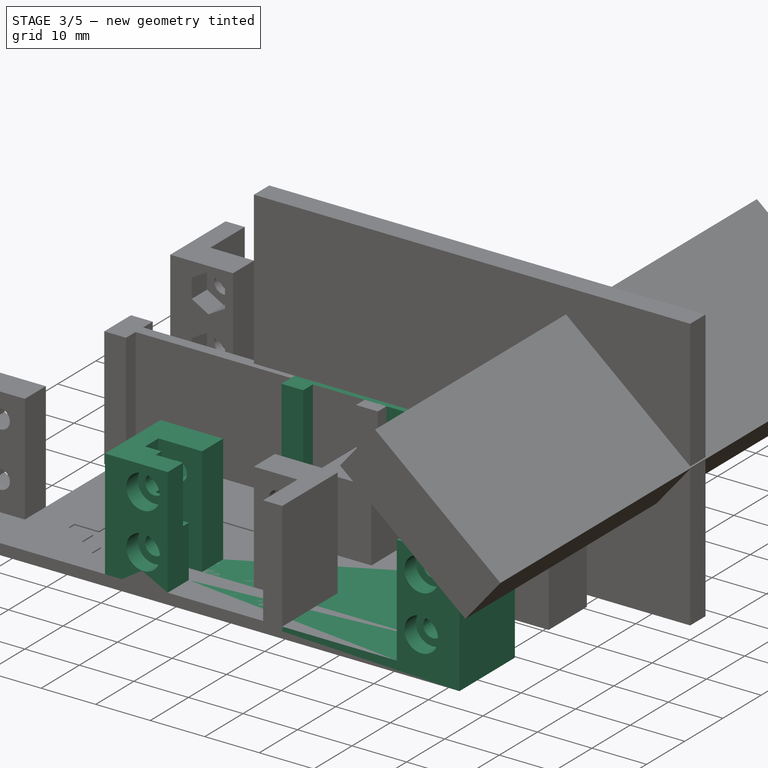
[diagram: stage 3 of 5 — iso view after this stage's code; geometry added in this stage tinted green]
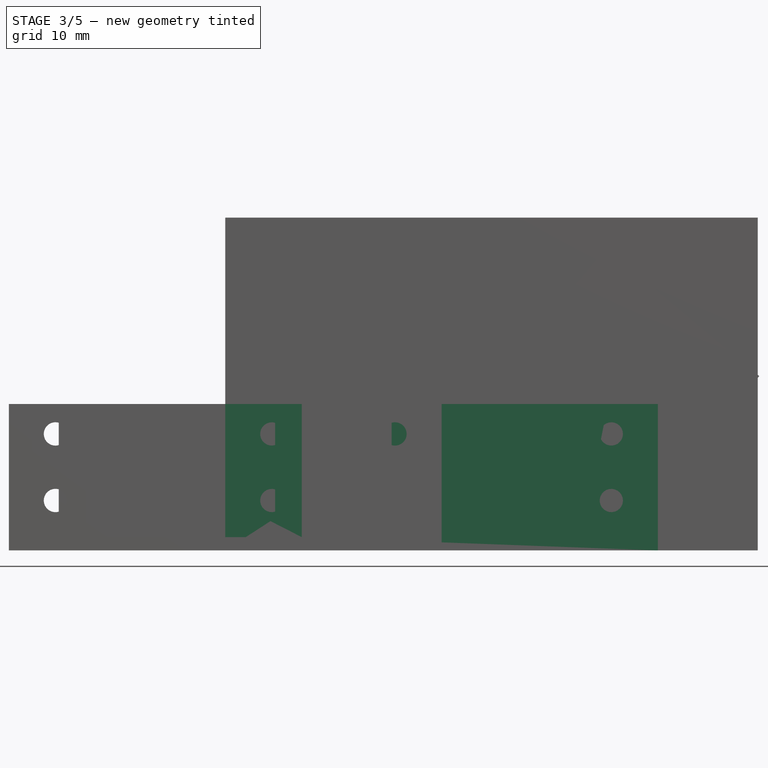
[diagram: stage 3 of 5 — front view after this stage's code; geometry added in this stage tinted green]
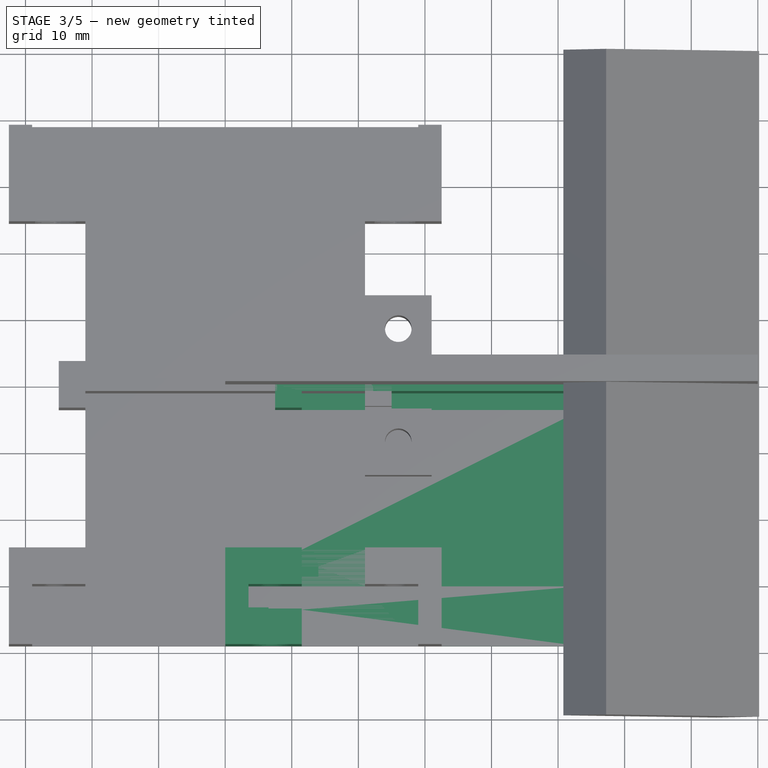
[diagram: stage 3 of 5 — top view after this stage's code; geometry added in this stage tinted green]
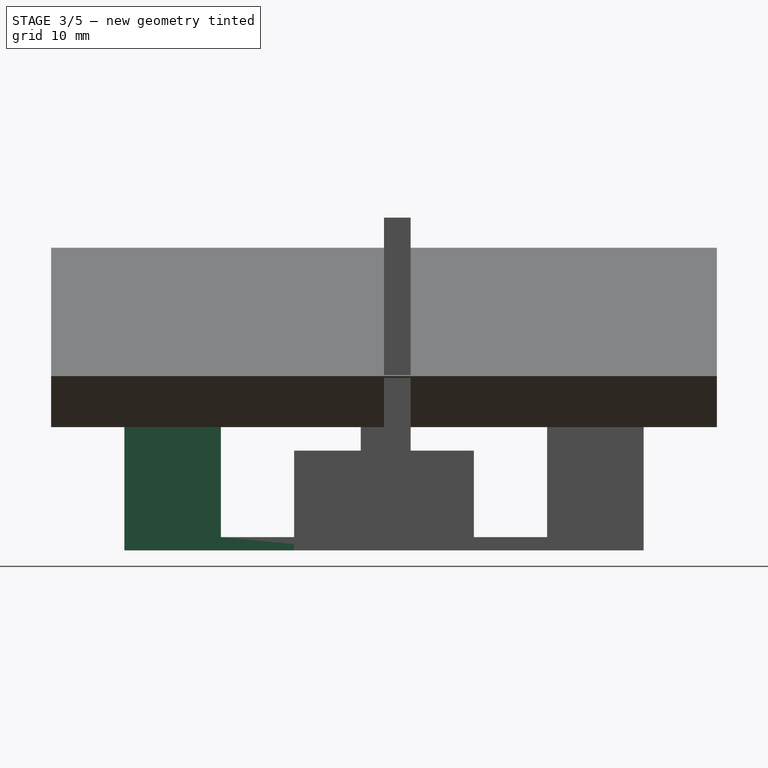
[diagram: stage 3 of 5 — right view after this stage's code; geometry added in this stage tinted green]
FEATURE [Part::Box] cube011
  Height = 50
  Length = 80
  Width = 4
FEATURE [Part::Box] cube012
  Height = 22
  Length = 65
  Width = 43
FEATURE [Part::Box] cube013
  Height = 21
  Length = 42
  Width = 40
FEATURE [Part::Box] cube014
  Height = 21
  Length = 58
  Placement = pos=(-8,29,0) rot=(0,0,1;0rad)
  Width = 3.5
FEATURE [Part::FeaturePython] frustum001  # WARN: FeaturePython — macro-defined, semantics opaque (R4)
  FacesNumber = 25
  Height = 2
  Radius1 = 6.5
  Radius2 = 5.75
FEATURE [Part::Prism] prism013
  Circumradius = 3
  Height = 6
  Polygon = 25
FEATURE [Part::Box] cube015
  Height = 1
  Length = 15
  Placement = pos=(-20,-1.5,0) rot=(0,0,1;0rad)
  Width = 3
FEATURE [Part::MultiFuse] Matrix_Union003
  Placement = pos=(31,40,10.5) rot=(-1,0,0;1.5708rad)
  Shapes = -> [frustum001,prism013,cube015]
FEATURE [Part::Box] cube016
  Height = 8
  Length = 15
  Placement = pos=(42,4,6.5) rot=(0,0,1;0rad)
  Width = 6
FEATURE [Part::MultiFuse] union004
  Shapes = -> [cube013,cube014,Matrix_Union003,cube016]
FEATURE [Part::Prism] prism014
  Circumradius = 1.75
  Height = 20
  Placement = pos=(-4.5,40,5.5) rot=(1,0,0;1.5708rad)
  Polygon = 25
FEATURE [Part::Prism] prism015
  Circumradius = 1.75
  Height = 20
  Placement = pos=(-4.5,40,15.5) rot=(1,0,0;1.5708rad)
  Polygon = 25
FEATURE [Part::Prism] prism016
  Circumradius = 1.75
  Height = 20
  Placement = pos=(46.5,40,5.5) rot=(1,0,0;1.5708rad)
  Polygon = 25
FEATURE [Part::MultiFuse] union005
  Shapes = -> [prism014,prism015,prism016,prism017]
FEATURE [Part::MultiFuse] union006
  Placement = pos=(11.5,5,2) rot=(0,0,1;0rad)
  Shapes = -> [union004,union005,cube017,cube018]
FEATURE [Part::MultiFuse] union007
  Shapes = -> [union006,cube019,cube020,cube021,cube022,Matrix_Union004,Matrix_Union005]
FEATURE [Part::Cut] difference002
  Base = -> cube012
  Tool = -> union007
FEATURE [Part::Cut] difference003
  Base = -> difference002
  Placement = pos=(0,-4,0) rot=(0,0,1;0rad)
  Tool = -> cube023
FEATURE [Part::Mirroring] mirr_difference003  label="mirrored difference003"
  Base = (0,0,0)
  Normal = (0,1,0)
  Placement = pos=(0,0.0001,0) rot=(0,0,1;0rad)
  Source = -> difference003
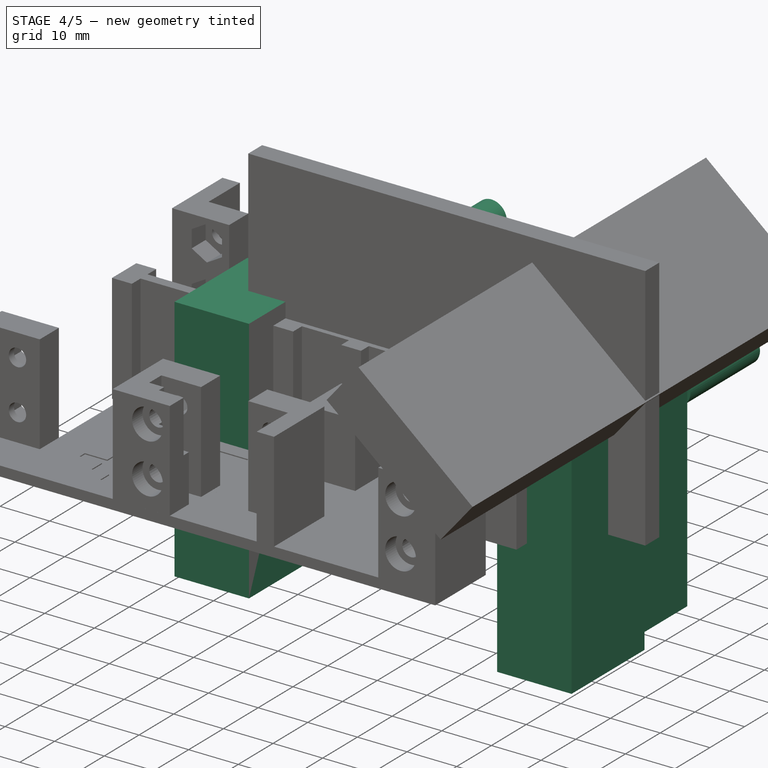
[diagram: stage 4 of 5 — iso view after this stage's code; geometry added in this stage tinted green]
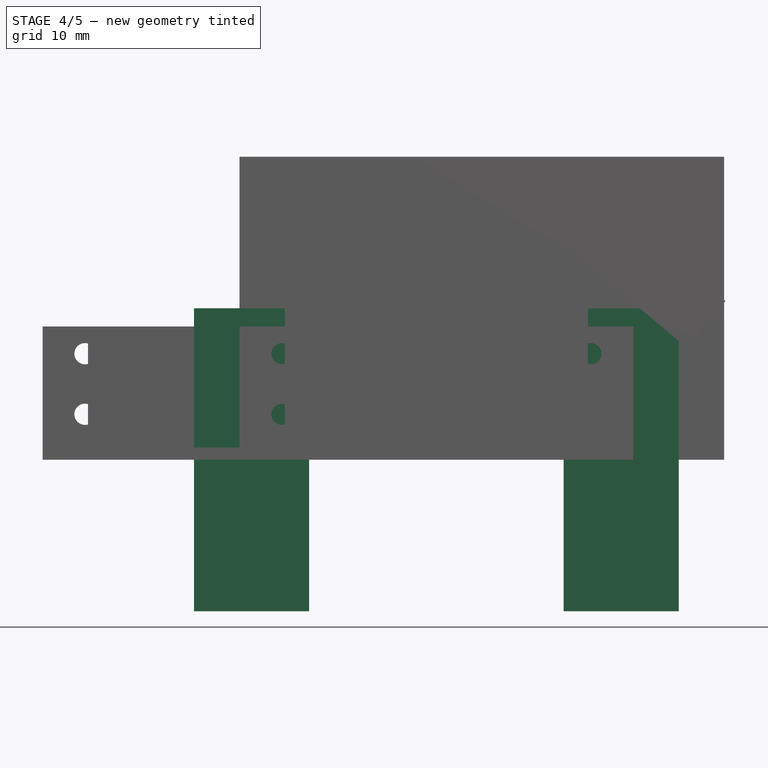
[diagram: stage 4 of 5 — front view after this stage's code; geometry added in this stage tinted green]
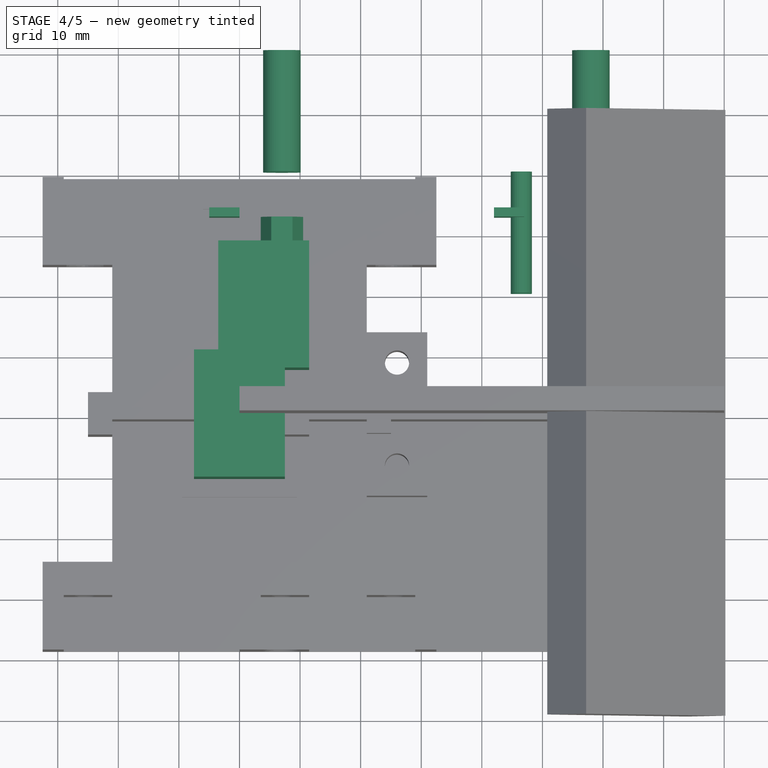
[diagram: stage 4 of 5 — top view after this stage's code; geometry added in this stage tinted green]
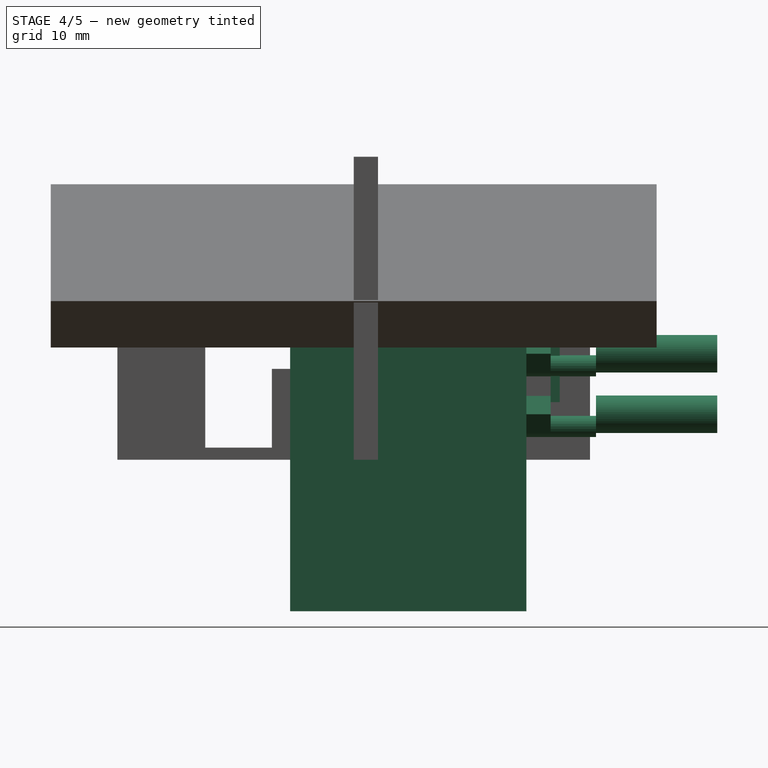
[diagram: stage 4 of 5 — right view after this stage's code; geometry added in this stage tinted green]
FEATURE [Part::Prism] prism003
  Circumradius = 1.75
  Height = 20
  Placement = pos=(46.5,40,5.5) rot=(1,0,0;1.5708rad)
  Polygon = 25
FEATURE [Part::Prism] prism004
  Circumradius = 1.75
  Height = 20
  Placement = pos=(46.5,40,15.5) rot=(1,0,0;1.5708rad)
  Polygon = 25
FEATURE [Part::Box] cube005
  Height = 11.5
  Length = 5
  Placement = pos=(-5,32.5,9.5) rot=(0,0,1;0rad)
  Width = 1.5
FEATURE [Part::Box] cube006
  Height = 11.5
  Length = 5
  Placement = pos=(42,32.5,9.5) rot=(0,0,1;0rad)
  Width = 1.5
FEATURE [Part::Box] cube007
  Height = 50
  Length = 15
  Placement = pos=(-3.5,7.5,-25) rot=(0,0,1;0rad)
  Width = 21
FEATURE [Part::Box] cube008
  Height = 50
  Length = 15
  Placement = pos=(53.5,7.5,-25) rot=(0,0,1;0rad)
  Width = 21
FEATURE [Part::Box] cube009
  Height = 50
  Length = 15
  Placement = pos=(-7.5,-10.5,-25) rot=(0,0,1;0rad)
  Width = 21
FEATURE [Part::Box] cube010
  Height = 50
  Length = 15
  Placement = pos=(57.5,-10.5,-25) rot=(0,0,1;0rad)
  Width = 21
FEATURE [Part::Prism] prism005
  Circumradius = 3.5
  Height = 20
  Placement = pos=(-4.5,40,5.5) rot=(1,0,0;1.5708rad)
  Polygon = 6
FEATURE [Part::Prism] prism006
  Circumradius = 3.5
  Height = 20
  Placement = pos=(-4.5,40,15.5) rot=(1,0,0;1.5708rad)
  Polygon = 6
FEATURE [Part::Prism] prism007
  Circumradius = 3.5
  Height = 20
  Placement = pos=(46.5,40,5.5) rot=(1,0,0;1.5708rad)
  Polygon = 6
FEATURE [Part::Prism] prism008
  Circumradius = 3.5
  Height = 20
  Placement = pos=(46.5,40,15.5) rot=(1,0,0;1.5708rad)
  Polygon = 6
FEATURE [Part::MultiFuse] Matrix_Union001
  Placement = pos=(11.5,-7.5,2) rot=(0,0,1;0rad)
  Shapes = -> [prism005,prism006,prism007,prism008]
FEATURE [Part::Prism] prism009
  Circumradius = 3.1
  Height = 20
  Placement = pos=(-4.5,40,5.5) rot=(1,0,0;1.5708rad)
  Polygon = 50
FEATURE [Part::Prism] prism010
  Circumradius = 3.1
  Height = 20
  Placement = pos=(-4.5,40,15.5) rot=(1,0,0;1.5708rad)
  Polygon = 50
FEATURE [Part::Prism] prism011
  Circumradius = 3.1
  Height = 20
  Placement = pos=(46.5,40,5.5) rot=(1,0,0;1.5708rad)
  Polygon = 50
FEATURE [Part::Prism] prism012
  Circumradius = 3.1
  Height = 20
  Placement = pos=(46.5,40,15.5) rot=(1,0,0;1.5708rad)
  Polygon = 50
FEATURE [Part::MultiFuse] Matrix_Union002
  Placement = pos=(11.5,20,2) rot=(0,0,1;0rad)
  Shapes = -> [prism009,prism010,prism011,prism012]
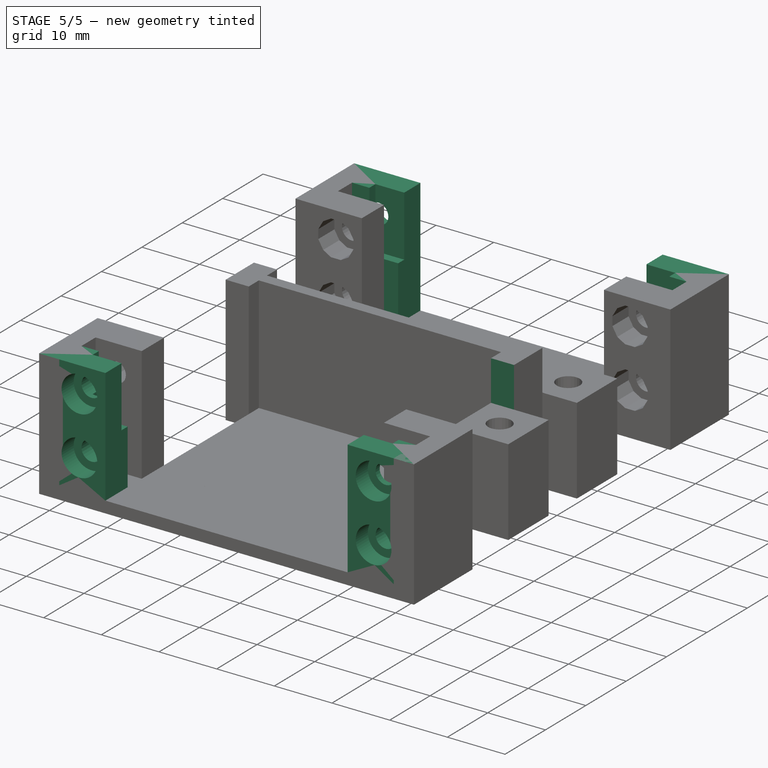
[diagram: stage 5 of 5 — iso view after this stage's code; geometry added in this stage tinted green]
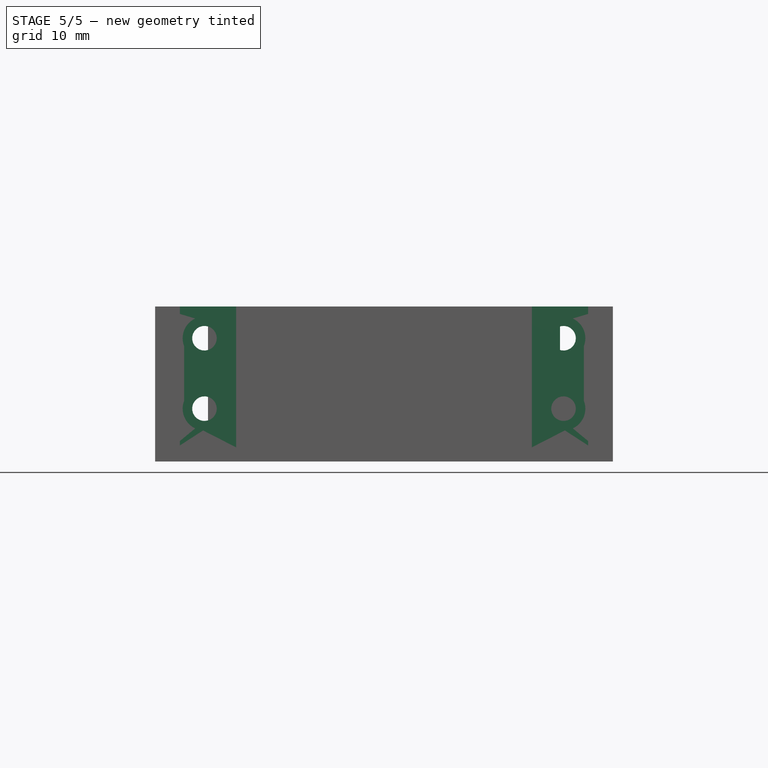
[diagram: stage 5 of 5 — front view after this stage's code; geometry added in this stage tinted green]
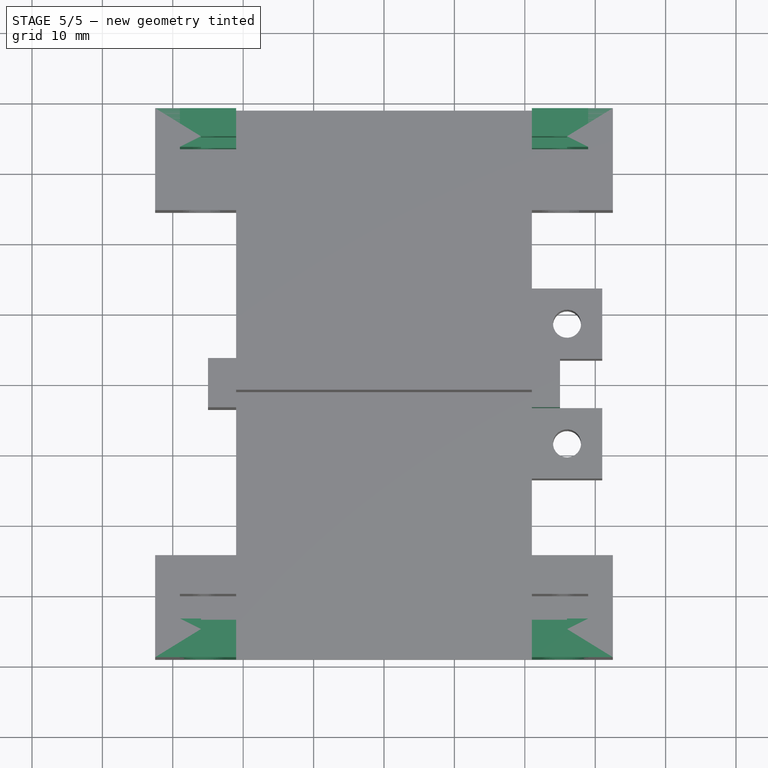
[diagram: stage 5 of 5 — top view after this stage's code; geometry added in this stage tinted green]
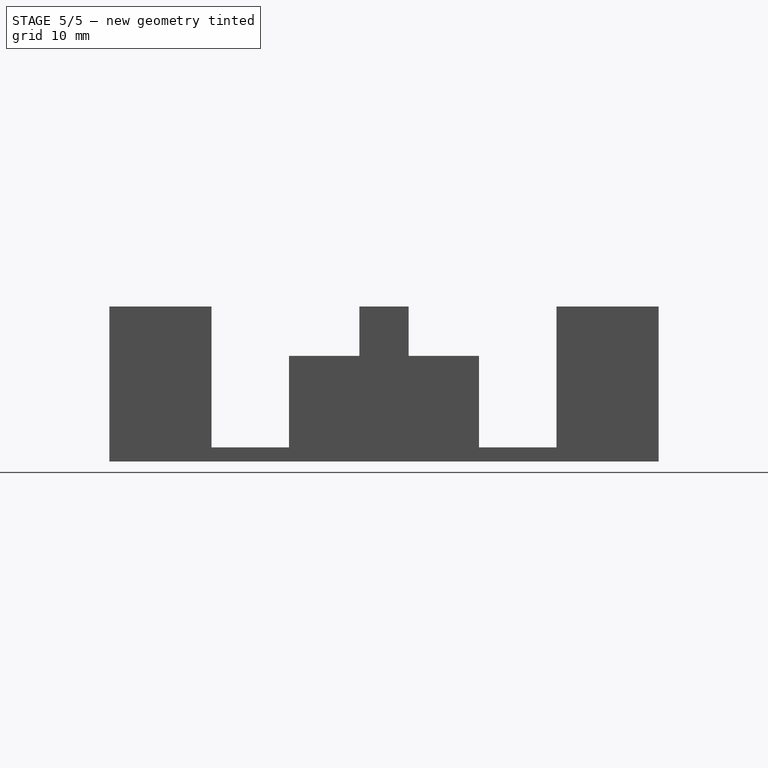
[diagram: stage 5 of 5 — right view after this stage's code; geometry added in this stage tinted green]
FEATURE [Part::Box] cube
  Height = 22
  Length = 65
  Width = 43
FEATURE [Part::Box] cube001
  Height = 21
  Length = 42
  Width = 40
FEATURE [Part::Box] cube002
  Height = 21
  Length = 58
  Placement = pos=(-8,29,0) rot=(0,0,1;0rad)
  Width = 3.5
FEATURE [Part::FeaturePython] frustum  # WARN: FeaturePython — macro-defined, semantics opaque (R4)
  FacesNumber = 25
  Height = 2
  Radius1 = 6.5
  Radius2 = 5.75
FEATURE [Part::Prism] prism
  Circumradius = 3
  Height = 6
  Polygon = 25
FEATURE [Part::Box] cube003
  Height = 1
  Length = 15
  Placement = pos=(-20,-1.5,0) rot=(0,0,1;0rad)
  Width = 3
FEATURE [Part::MultiFuse] Matrix_Union
  Placement = pos=(31,40,10.5) rot=(-1,0,0;1.5708rad)
  Shapes = -> [frustum,prism,cube003]
FEATURE [Part::Box] cube004
  Height = 8
  Length = 15
  Placement = pos=(42,4,6.5) rot=(0,0,1;0rad)
  Width = 6
FEATURE [Part::MultiFuse] union
  Shapes = -> [cube001,cube002,Matrix_Union,cube004]
FEATURE [Part::Prism] prism001
  Circumradius = 1.75
  Height = 20
  Placement = pos=(-4.5,40,5.5) rot=(1,0,0;1.5708rad)
  Polygon = 25
FEATURE [Part::Prism] prism002
  Circumradius = 1.75
  Height = 20
  Placement = pos=(-4.5,40,15.5) rot=(1,0,0;1.5708rad)
  Polygon = 25
FEATURE [Part::MultiFuse] union001
  Shapes = -> [prism001,prism002,prism003,prism004]
FEATURE [Part::MultiFuse] union002
  Placement = pos=(11.5,5,2) rot=(0,0,1;0rad)
  Shapes = -> [union,union001,cube005,cube006]
FEATURE [Part::MultiFuse] union003
  Shapes = -> [union002,cube007,cube008,cube009,cube010,Matrix_Union001,Matrix_Union002]
FEATURE [Part::Cut] difference
  Base = -> cube
  Tool = -> union003
FEATURE [Part::Cut] difference001
  Base = -> difference
  Placement = pos=(0,-4,0) rot=(0,0,1;0rad)
  Tool = -> cube011
FEATURE [Part::Fuse] union008
  Base = -> difference001
  Tool = -> mirr_difference003
FEATURE [Part::Cut] difference004
  Base = -> union008
  Tool = -> cube024
FEATURE [Part::MultiFuse] Group
  Placement = pos=(-32.5,0,0) rot=(0,0,1;0rad)
  Shapes = -> [difference004,difference005,difference006]
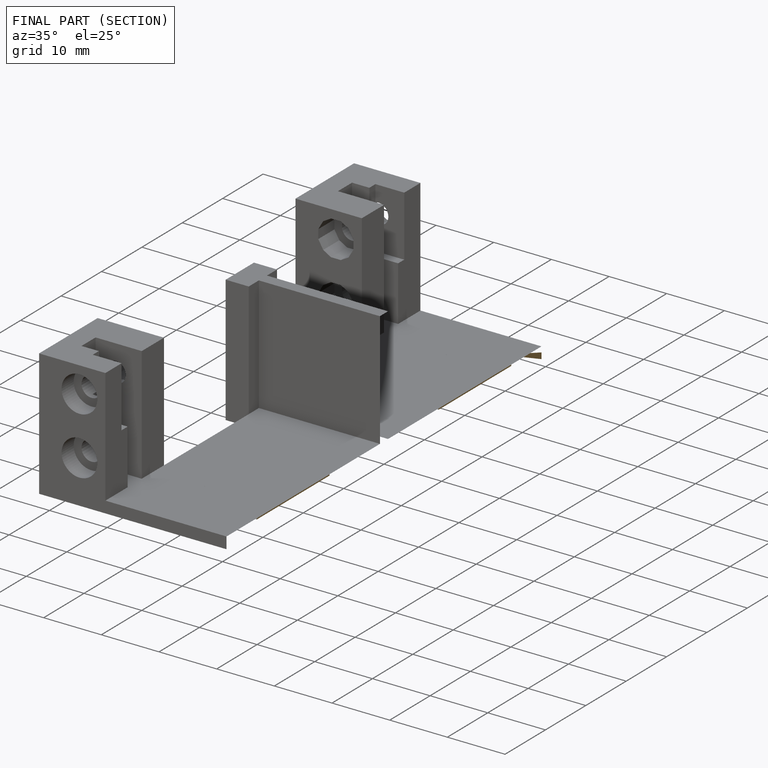
[diagram: finished part — half-section view (interior)]
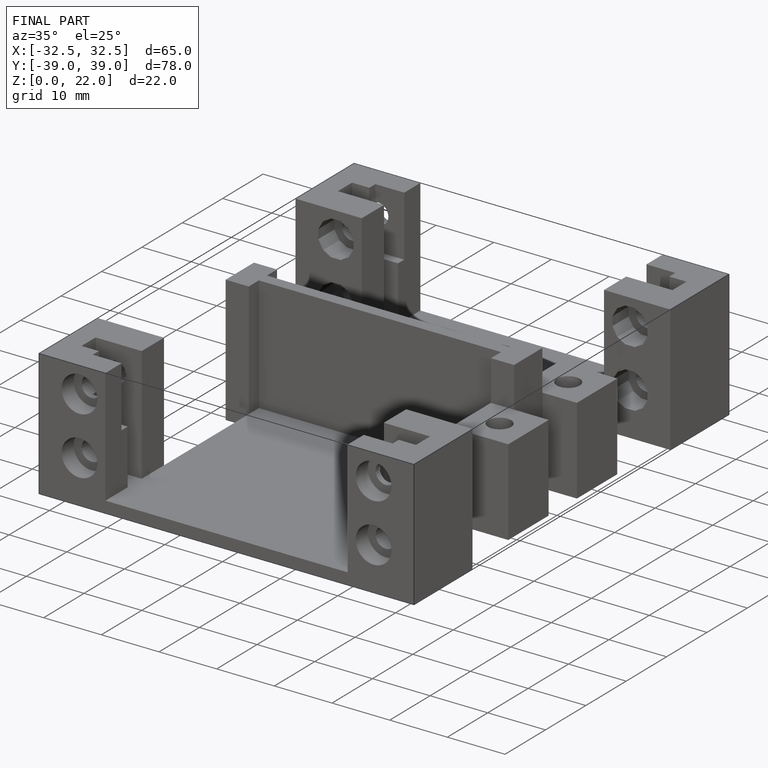
[diagram: finished part — iso view with bounding-box wireframe]
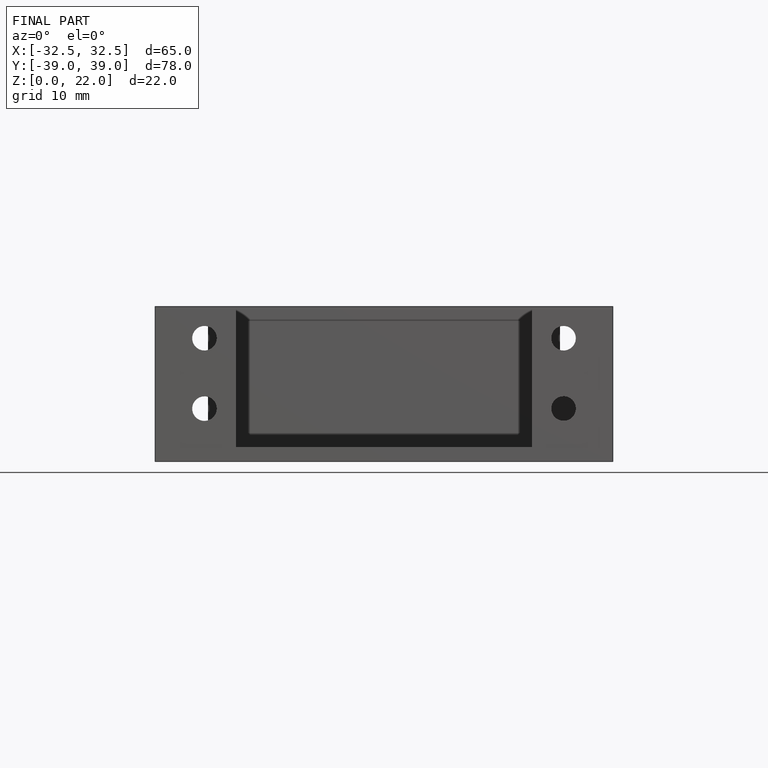
[diagram: finished part — front view with bounding-box wireframe]
